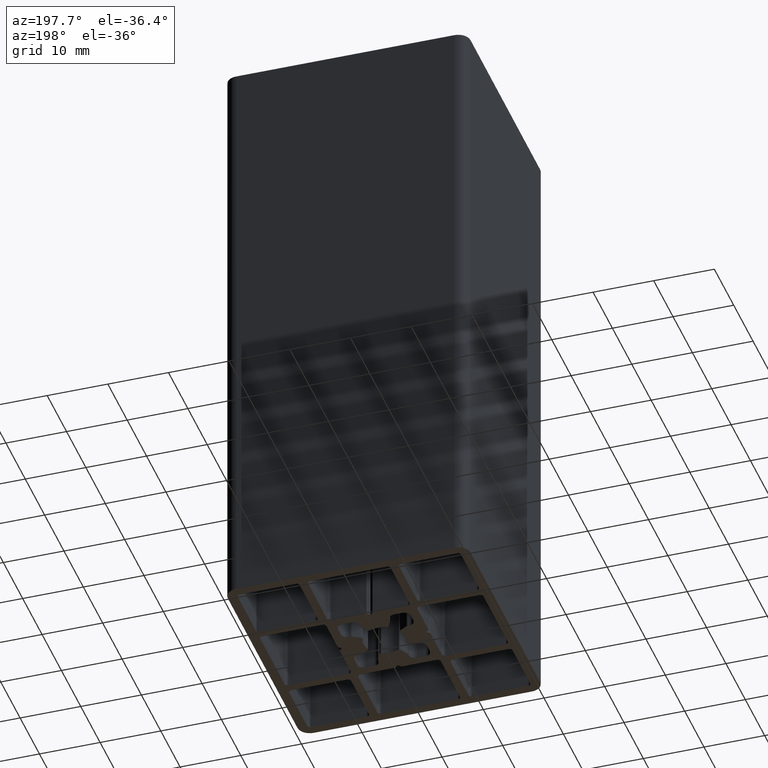
[diagram: clean part render]
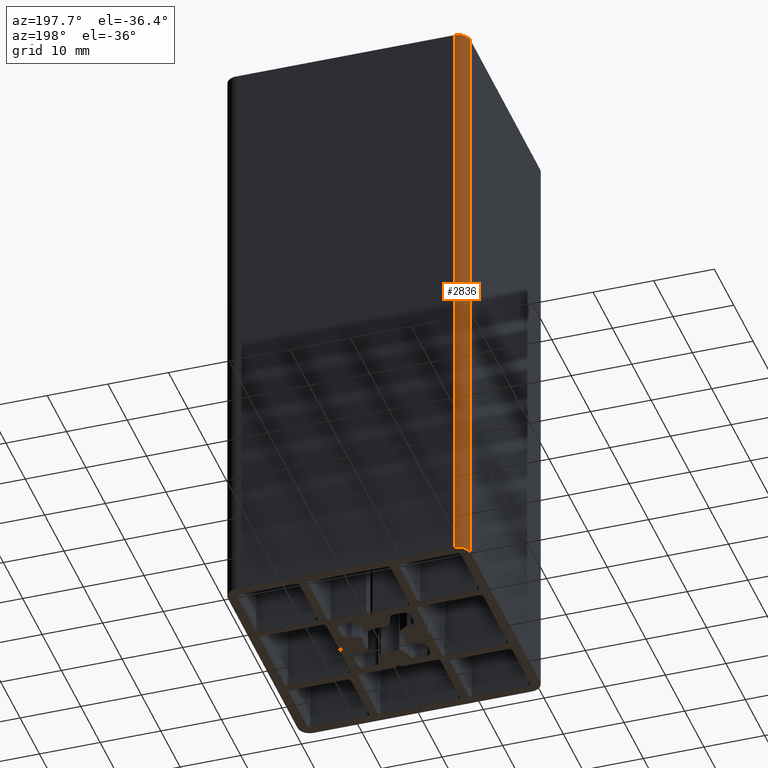
[diagram: same view with one face highlighted and labeled with its STEP entity id]
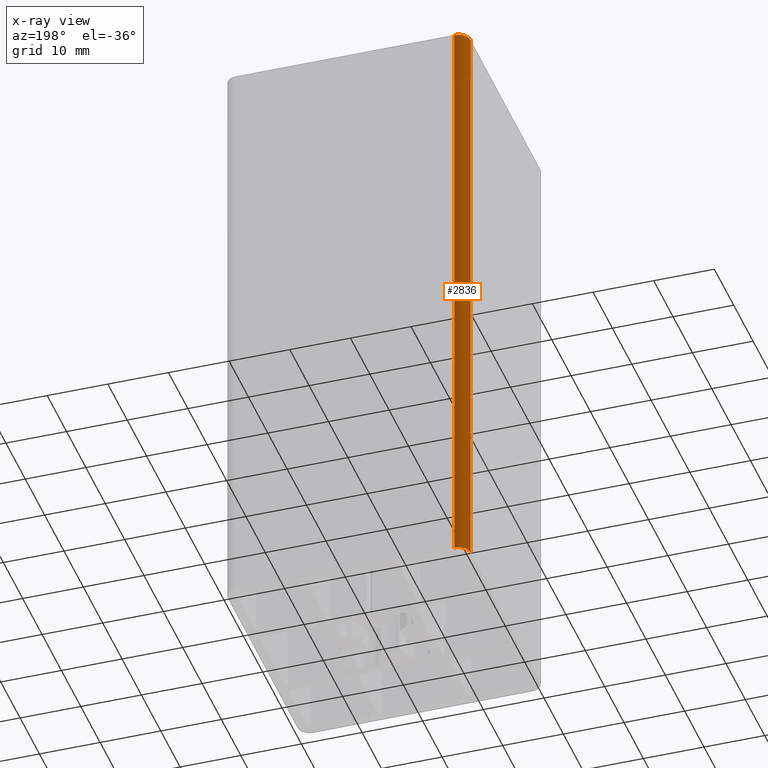
[diagram: x-ray of the same camera — body ghosted, the highlighted face saturated]
A machine part, auxiliary view. The second image highlights one B-rep face of the part: STEP entity #2836.
The next image is the same camera in x-ray: the body ghosted, the highlighted face saturated — about 0% of this face is hidden behind the body in this view.
In plain terms, the highlighted cylindrical surface (edge-blend (fillet) strip) has radius 2 mm, axis along (0, 0, 1).
Its self-contained STEP definition (entity closure, byte-faithful):
#161=CIRCLE('',#3108,2.);
#162=CIRCLE('',#3109,2.);
#231=CYLINDRICAL_SURFACE('',#3107,2.);
#367=FACE_OUTER_BOUND('',#508,.T.);
#508=EDGE_LOOP('',(#2327,#2328,#2329,#2330));
#804=LINE('',#4756,#1087);
#806=LINE('',#4762,#1089);
#1087=VECTOR('',#3915,100.);
#1089=VECTOR('',#3921,100.);
#1366=VERTEX_POINT('',#4753);
#1367=VERTEX_POINT('',#4755);
#1368=VERTEX_POINT('',#4759);
#1369=VERTEX_POINT('',#4761);
#1776=EDGE_CURVE('',#1367,#1366,#804,.T.);
#1778=EDGE_CURVE('',#1366,#1368,#161,.T.);
#1779=EDGE_CURVE('',#1369,#1368,#806,.T.);
#1780=EDGE_CURVE('',#1367,#1369,#162,.T.);
#2327=ORIENTED_EDGE('',*,*,#1778,.T.);
#2328=ORIENTED_EDGE('',*,*,#1779,.F.);
#2329=ORIENTED_EDGE('',*,*,#1780,.F.);
#2330=ORIENTED_EDGE('',*,*,#1776,.T.);
#2836=ADVANCED_FACE('',(#367),#231,.T.);
#3107=AXIS2_PLACEMENT_3D('',#4758,#3917,#3918);
#3108=AXIS2_PLACEMENT_3D('',#4760,#3919,#3920);
#3109=AXIS2_PLACEMENT_3D('',#4763,#3922,#3923);
#3915=DIRECTION('',(0.,0.,1.));
#3917=DIRECTION('center_axis',(0.,0.,1.));
#3918=DIRECTION('ref_axis',(0.,-1.,0.));
#3919=DIRECTION('center_axis',(0.,0.,-1.));
#3920=DIRECTION('ref_axis',(0.,-1.,0.));
#3921=DIRECTION('',(0.,0.,1.));
#3922=DIRECTION('center_axis',(0.,0.,-1.));
#3923=DIRECTION('ref_axis',(0.,-1.,0.));
#4753=CARTESIAN_POINT('',(-20.,18.,100.));
#4755=CARTESIAN_POINT('',(-20.,18.,0.));
#4756=CARTESIAN_POINT('',(-20.,18.,0.));
#4758=CARTESIAN_POINT('Origin',(-18.,18.,0.));
#4759=CARTESIAN_POINT('',(-18.,20.,100.));
#4760=CARTESIAN_POINT('Origin',(-18.,18.,100.));
#4761=CARTESIAN_POINT('',(-18.,20.,0.));
#4762=CARTESIAN_POINT('',(-18.,20.,0.));
#4763=CARTESIAN_POINT('Origin',(-18.,18.,0.));